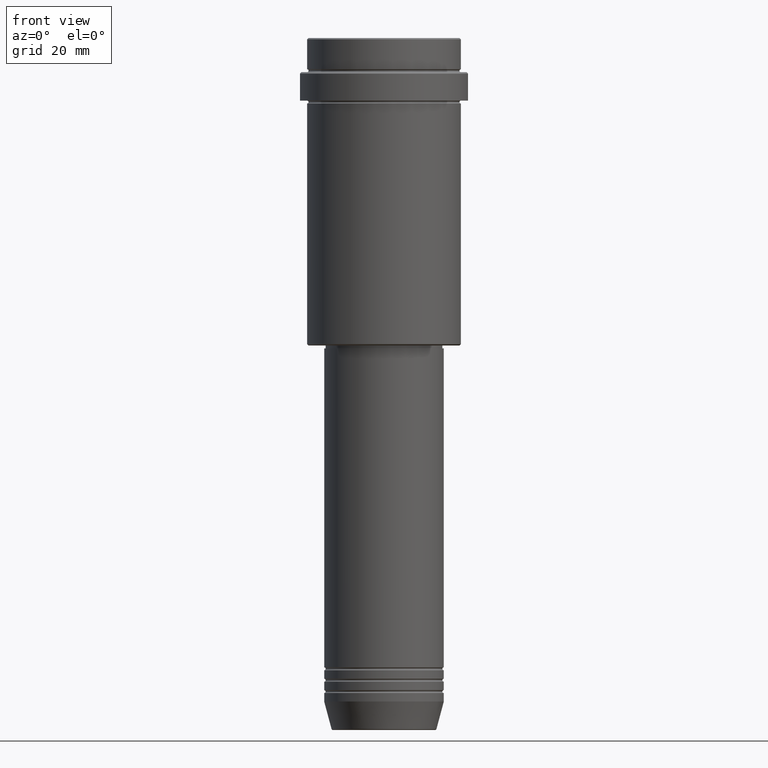
[diagram: clean part render]
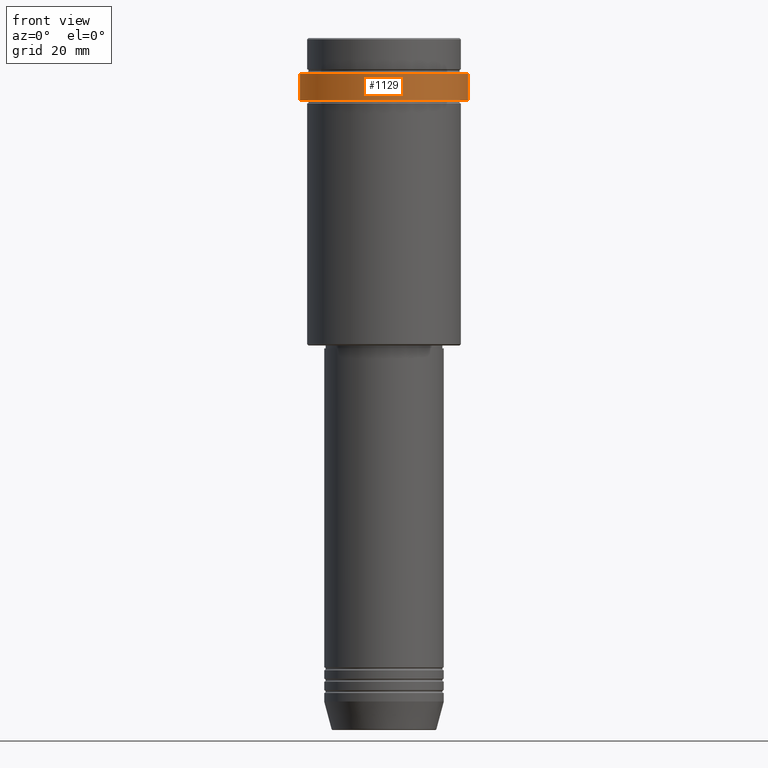
[diagram: same view with one face highlighted and labeled with its STEP entity id]
A machine part, front view. The second image highlights one B-rep face of the part: STEP entity #1129.
In plain terms, the highlighted cylindrical surface (partial cylindrical patch) has radius 29.5 mm, axis along (-0, -0, 1).
Its self-contained STEP definition (entity closure, byte-faithful):
#16 = CARTESIAN_POINT ( 'NONE',  ( 29.50000000000000000, 0.000000000000000000, -12.50000000000008704 ) ) ;
#25 = DIRECTION ( 'NONE',  ( 1.000000000000000000, 0.000000000000000000, 0.000000000000000000 ) ) ;
#98 = DIRECTION ( 'NONE',  ( -0.000000000000000000, -0.000000000000000000, 1.000000000000000000 ) ) ;
#115 = DIRECTION ( 'NONE',  ( -0.000000000000000000, -0.000000000000000000, 1.000000000000000000 ) ) ;
#159 = CARTESIAN_POINT ( 'NONE',  ( -29.49999999999999645, 3.612708057484690815E-15, -22.00000000000000711 ) ) ;
#183 = LINE ( 'NONE', #835, #442 ) ;
#273 = VERTEX_POINT ( 'NONE', #159 ) ;
#322 = CARTESIAN_POINT ( 'NONE',  ( 29.49999999999999645, 0.000000000000000000, -22.00000000000000711 ) ) ;
#341 = CARTESIAN_POINT ( 'NONE',  ( 0.000000000000000000, 0.000000000000000000, -22.00000000000000711 ) ) ;
#352 = DIRECTION ( 'NONE',  ( -0.000000000000000000, -0.000000000000000000, 1.000000000000000000 ) ) ;
#354 = EDGE_CURVE ( 'NONE', #273, #758, #183, .T. ) ;
#369 = DIRECTION ( 'NONE',  ( 1.000000000000000000, 0.000000000000000000, 0.000000000000000000 ) ) ;
#442 = VECTOR ( 'NONE', #98, 1000.000000000000000 ) ;
#463 = CYLINDRICAL_SURFACE ( 'NONE', #1249, 29.50000000000000000 ) ;
#557 = VERTEX_POINT ( 'NONE', #16 ) ;
#559 = AXIS2_PLACEMENT_3D ( 'NONE', #1348, #1240, #369 ) ;
#675 = CARTESIAN_POINT ( 'NONE',  ( 0.000000000000000000, 0.000000000000000000, 0.000000000000000000 ) ) ;
#757 = ORIENTED_EDGE ( 'NONE', *, *, #354, .F. ) ;
#758 = VERTEX_POINT ( 'NONE', #938 ) ;
#801 = FACE_OUTER_BOUND ( 'NONE', #916, .T. ) ;
#811 = CIRCLE ( 'NONE', #1292, 29.49999999999999645 ) ;
#835 = CARTESIAN_POINT ( 'NONE',  ( -29.50000000000000000, 3.612708057484691604E-15, 0.000000000000000000 ) ) ;
#910 = EDGE_CURVE ( 'NONE', #273, #1020, #811, .T. ) ;
#916 = EDGE_LOOP ( 'NONE', ( #757, #1340, #1362, #1045 ) ) ;
#938 = CARTESIAN_POINT ( 'NONE',  ( -29.50000000000000000, 3.612708057484691604E-15, -12.50000000000008704 ) ) ;
#980 = DIRECTION ( 'NONE',  ( 1.000000000000000000, 0.000000000000000000, 0.000000000000000000 ) ) ;
#1020 = VERTEX_POINT ( 'NONE', #322 ) ;
#1045 = ORIENTED_EDGE ( 'NONE', *, *, #1124, .T. ) ;
#1105 = EDGE_CURVE ( 'NONE', #1020, #557, #1256, .T. ) ;
#1117 = DIRECTION ( 'NONE',  ( -0.000000000000000000, -0.000000000000000000, 1.000000000000000000 ) ) ;
#1124 = EDGE_CURVE ( 'NONE', #557, #758, #1165, .T. ) ;
#1129 = ADVANCED_FACE ( 'NONE', ( #801 ), #463, .T. ) ;
#1142 = CARTESIAN_POINT ( 'NONE',  ( 29.50000000000000000, 0.000000000000000000, 0.000000000000000000 ) ) ;
#1165 = CIRCLE ( 'NONE', #559, 29.50000000000000000 ) ;
#1240 = DIRECTION ( 'NONE',  ( 0.000000000000000000, 0.000000000000000000, -1.000000000000000000 ) ) ;
#1249 = AXIS2_PLACEMENT_3D ( 'NONE', #675, #1117, #25 ) ;
#1256 = LINE ( 'NONE', #1142, #1363 ) ;
#1292 = AXIS2_PLACEMENT_3D ( 'NONE', #341, #115, #980 ) ;
#1340 = ORIENTED_EDGE ( 'NONE', *, *, #910, .T. ) ;
#1348 = CARTESIAN_POINT ( 'NONE',  ( 0.000000000000000000, 0.000000000000000000, -12.50000000000008704 ) ) ;
#1362 = ORIENTED_EDGE ( 'NONE', *, *, #1105, .T. ) ;
#1363 = VECTOR ( 'NONE', #352, 1000.000000000000000 ) ;